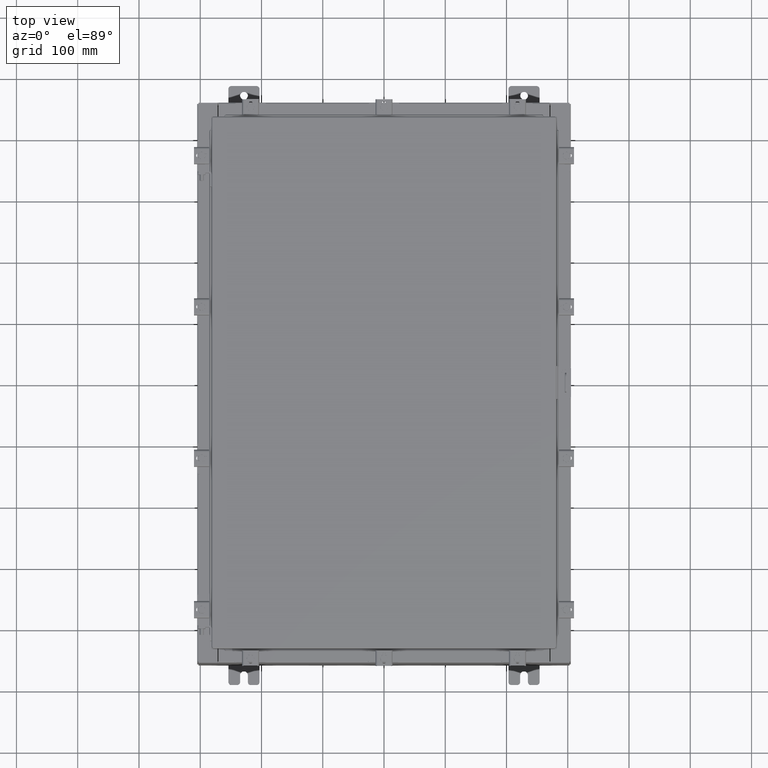
[diagram: clean part render]
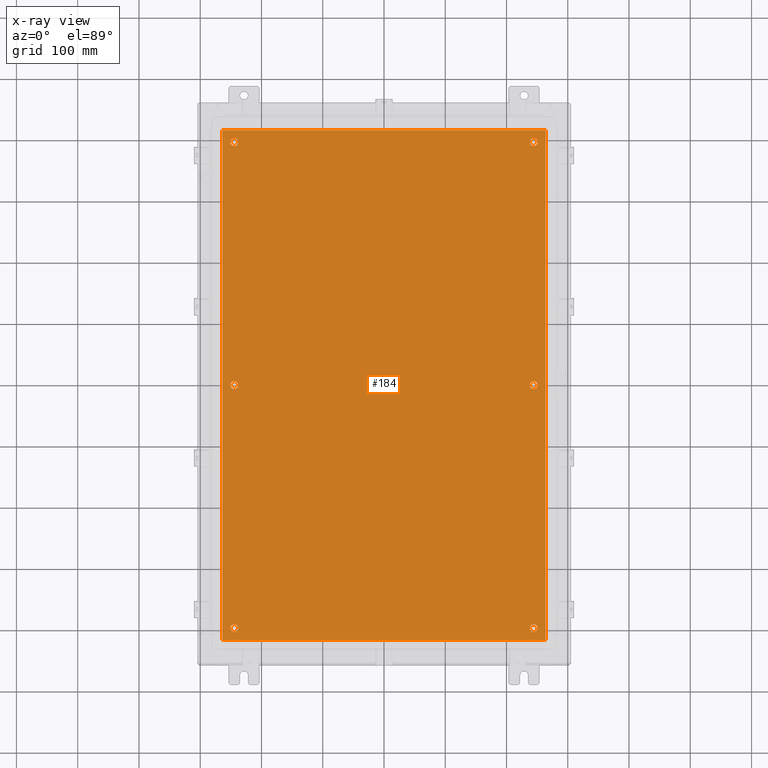
[diagram: x-ray — body ghosted, one internal face saturated and labeled with its STEP entity id]
A machine part, top view, then the same camera in x-ray: the body is ghosted and one INTERNAL B-rep face — a face not visible from any outside direction — is saturated and labeled: STEP entity #184.
In plain terms, the highlighted planar face has unit normal (0, 0, -1).
Its self-contained STEP definition (entity closure, byte-faithful):
#184 = ADVANCED_FACE ( 'NONE', ( #7931, #22318, #12221, #7379, #2563, #21201, #16420 ), #16661, .T. ) ;
#297 = CARTESIAN_POINT ( 'NONE',  ( -9.375000000000007100, 15.62500000000000200, -0.1039999999999999800 ) ) ;
#379 = AXIS2_PLACEMENT_3D ( 'NONE', #8646, #21250, #10494 ) ;
#384 = ORIENTED_EDGE ( 'NONE', *, *, #22619, .F. ) ;
#405 = ORIENTED_EDGE ( 'NONE', *, *, #4996, .T. ) ;
#412 = DIRECTION ( 'NONE',  ( -1.000000000000000000, 0.0000000000000000000, 0.0000000000000000000 ) ) ;
#617 = DIRECTION ( 'NONE',  ( -1.000000000000000000, 0.0000000000000000000, 0.0000000000000000000 ) ) ;
#621 = EDGE_LOOP ( 'NONE', ( #14969, #14544 ) ) ;
#648 = VECTOR ( 'NONE', #18018, 39.37007874015748100 ) ;
#733 = CARTESIAN_POINT ( 'NONE',  ( 9.625000000000007100, -15.62500000000000200, -0.1039999999999999800 ) ) ;
#1081 = CARTESIAN_POINT ( 'NONE',  ( -9.625000000000007100, 15.62500000000000200, -0.1039999999999999800 ) ) ;
#1170 = AXIS2_PLACEMENT_3D ( 'NONE', #733, #13394, #2555 ) ;
#1220 = LINE ( 'NONE', #16228, #648 ) ;
#1700 = VERTEX_POINT ( 'NONE', #2493 ) ;
#1733 = CARTESIAN_POINT ( 'NONE',  ( 9.625000000000007100, 15.62500000000000200, -0.1039999999999999800 ) ) ;
#1979 = VERTEX_POINT ( 'NONE', #12567 ) ;
#2195 = CARTESIAN_POINT ( 'NONE',  ( 0.0000000000000000000, 0.0000000000000000000, -0.1039999999999999800 ) ) ;
#2216 = EDGE_CURVE ( 'NONE', #22917, #8501, #2531, .T. ) ;
#2238 = ORIENTED_EDGE ( 'NONE', *, *, #4493, .T. ) ;
#2381 = VERTEX_POINT ( 'NONE', #15412 ) ;
#2493 = CARTESIAN_POINT ( 'NONE',  ( -9.875000000000007100, -15.62500000000000200, -0.1039999999999999800 ) ) ;
#2531 = CIRCLE ( 'NONE', #1170, 0.2499999999999998100 ) ;
#2555 = DIRECTION ( 'NONE',  ( -1.000000000000000000, 0.0000000000000000000, 0.0000000000000000000 ) ) ;
#2563 = FACE_BOUND ( 'NONE', #10777, .T. ) ;
#2690 = VERTEX_POINT ( 'NONE', #15933 ) ;
#2897 = DIRECTION ( 'NONE',  ( -1.000000000000000000, 0.0000000000000000000, 0.0000000000000000000 ) ) ;
#3073 = DIRECTION ( 'NONE',  ( -0.0000000000000000000, -0.0000000000000000000, 1.000000000000000000 ) ) ;
#3332 = CIRCLE ( 'NONE', #7565, 0.2500000000000008900 ) ;
#3415 = CIRCLE ( 'NONE', #21519, 0.2500000000000008900 ) ;
#3528 = DIRECTION ( 'NONE',  ( -1.000000000000000000, 0.0000000000000000000, 0.0000000000000000000 ) ) ;
#3639 = AXIS2_PLACEMENT_3D ( 'NONE', #1733, #14385, #3528 ) ;
#3828 = ORIENTED_EDGE ( 'NONE', *, *, #14908, .T. ) ;
#4160 = VECTOR ( 'NONE', #13653, 39.37007874015748100 ) ;
#4493 = EDGE_CURVE ( 'NONE', #1979, #19497, #20832, .T. ) ;
#4557 = EDGE_LOOP ( 'NONE', ( #11923, #3828 ) ) ;
#4581 = CARTESIAN_POINT ( 'NONE',  ( -9.875000000000005300, 2.934704822324310800E-016, -0.1039999999999999800 ) ) ;
#4648 = EDGE_CURVE ( 'NONE', #20867, #21866, #18561, .T. ) ;
#4919 = LINE ( 'NONE', #7124, #9155 ) ;
#4996 = EDGE_CURVE ( 'NONE', #18471, #1700, #3332, .T. ) ;
#5510 = AXIS2_PLACEMENT_3D ( 'NONE', #10746, #23327, #12566 ) ;
#5530 = AXIS2_PLACEMENT_3D ( 'NONE', #2195, #5827, #18457 ) ;
#5763 = CIRCLE ( 'NONE', #12907, 0.2500000000000008900 ) ;
#5827 = DIRECTION ( 'NONE',  ( 0.0000000000000000000, 0.0000000000000000000, -1.000000000000000000 ) ) ;
#5936 = ORIENTED_EDGE ( 'NONE', *, *, #17040, .T. ) ;
#6009 = EDGE_LOOP ( 'NONE', ( #17012, #12236 ) ) ;
#6512 = CARTESIAN_POINT ( 'NONE',  ( -9.625000000000007100, -15.62500000000000200, -0.1039999999999999800 ) ) ;
#6792 = CARTESIAN_POINT ( 'NONE',  ( -9.625000000000007100, 15.62500000000000200, -0.1039999999999999800 ) ) ;
#7124 = CARTESIAN_POINT ( 'NONE',  ( 10.50000000000000400, 16.38299999999999900, -0.1040000000000009100 ) ) ;
#7288 = VERTEX_POINT ( 'NONE', #4581 ) ;
#7379 = FACE_BOUND ( 'NONE', #621, .T. ) ;
#7565 = AXIS2_PLACEMENT_3D ( 'NONE', #13940, #3073, #15741 ) ;
#7642 = CARTESIAN_POINT ( 'NONE',  ( 10.38300000000000100, -16.38299999999999600, -0.1040000000000009100 ) ) ;
#7754 = CARTESIAN_POINT ( 'NONE',  ( -10.50000000000000200, -16.38299999999999600, -0.1040000000000009100 ) ) ;
#7768 = CIRCLE ( 'NONE', #5510, 0.2499999999999998100 ) ;
#7931 = FACE_BOUND ( 'NONE', #6009, .T. ) ;
#8197 = CARTESIAN_POINT ( 'NONE',  ( -9.375000000000005300, 2.628543122537473900E-016, -0.1039999999999999800 ) ) ;
#8284 = EDGE_CURVE ( 'NONE', #8501, #22917, #7768, .T. ) ;
#8317 = DIRECTION ( 'NONE',  ( -1.000000000000000000, 0.0000000000000000000, 0.0000000000000000000 ) ) ;
#8501 = VERTEX_POINT ( 'NONE', #17287 ) ;
#8600 = DIRECTION ( 'NONE',  ( -1.000000000000000000, 0.0000000000000000000, 0.0000000000000000000 ) ) ;
#8646 = CARTESIAN_POINT ( 'NONE',  ( 9.625000000000007100, 2.620299400612403500E-015, -0.1039999999999999800 ) ) ;
#8917 = EDGE_CURVE ( 'NONE', #19497, #1979, #16819, .T. ) ;
#8968 = VERTEX_POINT ( 'NONE', #7642 ) ;
#8974 = CARTESIAN_POINT ( 'NONE',  ( 9.625000000000007100, 2.620299400612403500E-015, -0.1039999999999999800 ) ) ;
#9155 = VECTOR ( 'NONE', #16211, 39.37007874015748100 ) ;
#9303 = CARTESIAN_POINT ( 'NONE',  ( 9.625000000000007100, 15.62500000000000200, -0.1039999999999999800 ) ) ;
#9475 = EDGE_CURVE ( 'NONE', #15889, #22495, #22715, .T. ) ;
#9864 = ORIENTED_EDGE ( 'NONE', *, *, #11488, .F. ) ;
#9926 = EDGE_CURVE ( 'NONE', #22495, #15889, #13133, .T. ) ;
#10003 = CARTESIAN_POINT ( 'NONE',  ( -10.38300000000000100, 16.38300000000000300, -0.1039999999999987600 ) ) ;
#10040 = CIRCLE ( 'NONE', #18293, 0.2500000000000008900 ) ;
#10148 = EDGE_CURVE ( 'NONE', #2381, #20867, #4919, .T. ) ;
#10494 = DIRECTION ( 'NONE',  ( -1.000000000000000000, 0.0000000000000000000, 0.0000000000000000000 ) ) ;
#10746 = CARTESIAN_POINT ( 'NONE',  ( 9.625000000000007100, -15.62500000000000200, -0.1039999999999999800 ) ) ;
#10777 = EDGE_LOOP ( 'NONE', ( #13212, #2238 ) ) ;
#10830 = DIRECTION ( 'NONE',  ( -1.000000000000000000, 0.0000000000000000000, 0.0000000000000000000 ) ) ;
#10920 = CARTESIAN_POINT ( 'NONE',  ( 9.875000000000007100, 15.62500000000000200, -0.1039999999999999800 ) ) ;
#11147 = DIRECTION ( 'NONE',  ( -1.000000000000000000, 0.0000000000000000000, 0.0000000000000000000 ) ) ;
#11206 = EDGE_CURVE ( 'NONE', #1700, #18471, #20141, .T. ) ;
#11258 = DIRECTION ( 'NONE',  ( -0.0000000000000000000, -0.0000000000000000000, 1.000000000000000000 ) ) ;
#11287 = CARTESIAN_POINT ( 'NONE',  ( -9.375000000000007100, -15.62500000000000200, -0.1039999999999999800 ) ) ;
#11451 = DIRECTION ( 'NONE',  ( -0.0000000000000000000, -0.0000000000000000000, 1.000000000000000000 ) ) ;
#11484 = DIRECTION ( 'NONE',  ( 1.000000000000000000, -0.0000000000000000000, -0.0000000000000000000 ) ) ;
#11488 = EDGE_CURVE ( 'NONE', #8968, #2381, #1220, .T. ) ;
#11594 = VERTEX_POINT ( 'NONE', #297 ) ;
#11923 = ORIENTED_EDGE ( 'NONE', *, *, #14418, .T. ) ;
#11930 = AXIS2_PLACEMENT_3D ( 'NONE', #6512, #19119, #8317 ) ;
#12149 = ORIENTED_EDGE ( 'NONE', *, *, #19005, .T. ) ;
#12221 = FACE_BOUND ( 'NONE', #14763, .T. ) ;
#12236 = ORIENTED_EDGE ( 'NONE', *, *, #9475, .T. ) ;
#12566 = DIRECTION ( 'NONE',  ( -1.000000000000000000, 0.0000000000000000000, 0.0000000000000000000 ) ) ;
#12567 = CARTESIAN_POINT ( 'NONE',  ( 9.375000000000007100, 15.62500000000000200, -0.1039999999999999800 ) ) ;
#12684 = CIRCLE ( 'NONE', #23217, 0.2500000000000008900 ) ;
#12907 = AXIS2_PLACEMENT_3D ( 'NONE', #6792, #19411, #8600 ) ;
#13133 = CIRCLE ( 'NONE', #379, 0.2499999999999998100 ) ;
#13212 = ORIENTED_EDGE ( 'NONE', *, *, #8917, .T. ) ;
#13394 = DIRECTION ( 'NONE',  ( -0.0000000000000000000, -0.0000000000000000000, 1.000000000000000000 ) ) ;
#13653 = DIRECTION ( 'NONE',  ( 0.0000000000000000000, -1.000000000000000000, 0.0000000000000000000 ) ) ;
#13713 = VECTOR ( 'NONE', #11484, 39.37007874015748100 ) ;
#13746 = DIRECTION ( 'NONE',  ( -0.0000000000000000000, -0.0000000000000000000, 1.000000000000000000 ) ) ;
#13940 = CARTESIAN_POINT ( 'NONE',  ( -9.625000000000007100, -15.62500000000000200, -0.1039999999999999800 ) ) ;
#14338 = AXIS2_PLACEMENT_3D ( 'NONE', #9303, #21912, #11147 ) ;
#14385 = DIRECTION ( 'NONE',  ( -0.0000000000000000000, -0.0000000000000000000, 1.000000000000000000 ) ) ;
#14403 = VERTEX_POINT ( 'NONE', #8197 ) ;
#14418 = EDGE_CURVE ( 'NONE', #11594, #2690, #10040, .T. ) ;
#14544 = ORIENTED_EDGE ( 'NONE', *, *, #8284, .T. ) ;
#14634 = AXIS2_PLACEMENT_3D ( 'NONE', #8974, #21579, #10830 ) ;
#14763 = EDGE_LOOP ( 'NONE', ( #405, #15042 ) ) ;
#14908 = EDGE_CURVE ( 'NONE', #2690, #11594, #5763, .T. ) ;
#14969 = ORIENTED_EDGE ( 'NONE', *, *, #2216, .T. ) ;
#15042 = ORIENTED_EDGE ( 'NONE', *, *, #11206, .T. ) ;
#15412 = CARTESIAN_POINT ( 'NONE',  ( 10.38300000000000100, 16.38300000000000300, -0.1040000000000009100 ) ) ;
#15741 = DIRECTION ( 'NONE',  ( -1.000000000000000000, 0.0000000000000000000, 0.0000000000000000000 ) ) ;
#15889 = VERTEX_POINT ( 'NONE', #22346 ) ;
#15933 = CARTESIAN_POINT ( 'NONE',  ( -9.875000000000007100, 15.62500000000000200, -0.1039999999999999800 ) ) ;
#16211 = DIRECTION ( 'NONE',  ( -1.000000000000000000, -0.0000000000000000000, -0.0000000000000000000 ) ) ;
#16228 = CARTESIAN_POINT ( 'NONE',  ( 10.38300000000000100, -16.38299999999999600, -0.1040000000000009100 ) ) ;
#16420 = FACE_OUTER_BOUND ( 'NONE', #17751, .T. ) ;
#16661 = PLANE ( 'NONE',  #5530 ) ;
#16759 = EDGE_LOOP ( 'NONE', ( #12149, #5936 ) ) ;
#16819 = CIRCLE ( 'NONE', #14338, 0.2499999999999998100 ) ;
#17012 = ORIENTED_EDGE ( 'NONE', *, *, #9926, .T. ) ;
#17040 = EDGE_CURVE ( 'NONE', #7288, #14403, #3415, .T. ) ;
#17287 = CARTESIAN_POINT ( 'NONE',  ( 9.375000000000007100, -15.62500000000000200, -0.1039999999999999800 ) ) ;
#17695 = CARTESIAN_POINT ( 'NONE',  ( 9.875000000000007100, -15.62500000000000200, -0.1039999999999999800 ) ) ;
#17751 = EDGE_LOOP ( 'NONE', ( #384, #20994, #18961, #9864 ) ) ;
#17958 = CARTESIAN_POINT ( 'NONE',  ( -10.38300000000000100, -16.38299999999999600, -0.1040000000000009100 ) ) ;
#18018 = DIRECTION ( 'NONE',  ( 0.0000000000000000000, 1.000000000000000000, 0.0000000000000000000 ) ) ;
#18293 = AXIS2_PLACEMENT_3D ( 'NONE', #1081, #13746, #2897 ) ;
#18457 = DIRECTION ( 'NONE',  ( -1.000000000000000000, 0.0000000000000000000, -0.0000000000000000000 ) ) ;
#18466 = LINE ( 'NONE', #7754, #13713 ) ;
#18471 = VERTEX_POINT ( 'NONE', #11287 ) ;
#18561 = LINE ( 'NONE', #10003, #4160 ) ;
#18797 = CARTESIAN_POINT ( 'NONE',  ( -10.38300000000000100, 16.38300000000000300, -0.1039999999999987600 ) ) ;
#18961 = ORIENTED_EDGE ( 'NONE', *, *, #10148, .F. ) ;
#19005 = EDGE_CURVE ( 'NONE', #14403, #7288, #12684, .T. ) ;
#19119 = DIRECTION ( 'NONE',  ( -0.0000000000000000000, -0.0000000000000000000, 1.000000000000000000 ) ) ;
#19411 = DIRECTION ( 'NONE',  ( -0.0000000000000000000, -0.0000000000000000000, 1.000000000000000000 ) ) ;
#19497 = VERTEX_POINT ( 'NONE', #10920 ) ;
#20141 = CIRCLE ( 'NONE', #11930, 0.2500000000000008900 ) ;
#20208 = CARTESIAN_POINT ( 'NONE',  ( 9.875000000000007100, 2.620299400612403500E-015, -0.1039999999999999800 ) ) ;
#20832 = CIRCLE ( 'NONE', #3639, 0.2499999999999998100 ) ;
#20867 = VERTEX_POINT ( 'NONE', #18797 ) ;
#20994 = ORIENTED_EDGE ( 'NONE', *, *, #4648, .F. ) ;
#21201 = FACE_BOUND ( 'NONE', #4557, .T. ) ;
#21250 = DIRECTION ( 'NONE',  ( -0.0000000000000000000, -0.0000000000000000000, 1.000000000000000000 ) ) ;
#21519 = AXIS2_PLACEMENT_3D ( 'NONE', #22227, #11451, #617 ) ;
#21579 = DIRECTION ( 'NONE',  ( -0.0000000000000000000, -0.0000000000000000000, 1.000000000000000000 ) ) ;
#21866 = VERTEX_POINT ( 'NONE', #17958 ) ;
#21912 = DIRECTION ( 'NONE',  ( -0.0000000000000000000, -0.0000000000000000000, 1.000000000000000000 ) ) ;
#22027 = CARTESIAN_POINT ( 'NONE',  ( -9.625000000000005300, 2.628543122537473900E-016, -0.1039999999999999800 ) ) ;
#22227 = CARTESIAN_POINT ( 'NONE',  ( -9.625000000000005300, 2.628543122537473900E-016, -0.1039999999999999800 ) ) ;
#22318 = FACE_BOUND ( 'NONE', #16759, .T. ) ;
#22346 = CARTESIAN_POINT ( 'NONE',  ( 9.375000000000007100, 2.650915570591087300E-015, -0.1039999999999999800 ) ) ;
#22495 = VERTEX_POINT ( 'NONE', #20208 ) ;
#22619 = EDGE_CURVE ( 'NONE', #21866, #8968, #18466, .T. ) ;
#22715 = CIRCLE ( 'NONE', #14634, 0.2499999999999998100 ) ;
#22917 = VERTEX_POINT ( 'NONE', #17695 ) ;
#23217 = AXIS2_PLACEMENT_3D ( 'NONE', #22027, #11258, #412 ) ;
#23327 = DIRECTION ( 'NONE',  ( -0.0000000000000000000, -0.0000000000000000000, 1.000000000000000000 ) ) ;